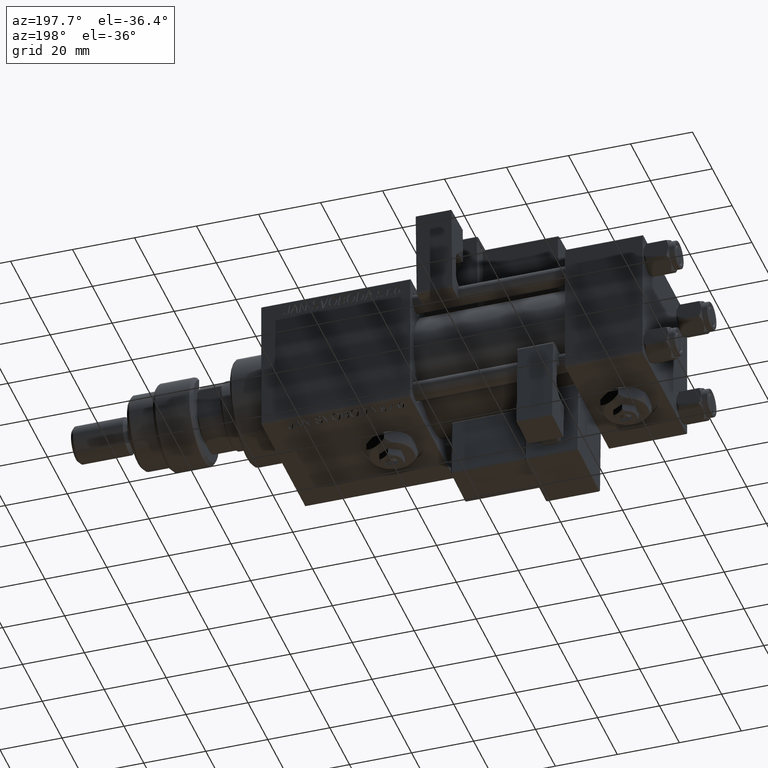
[diagram: clean part render]
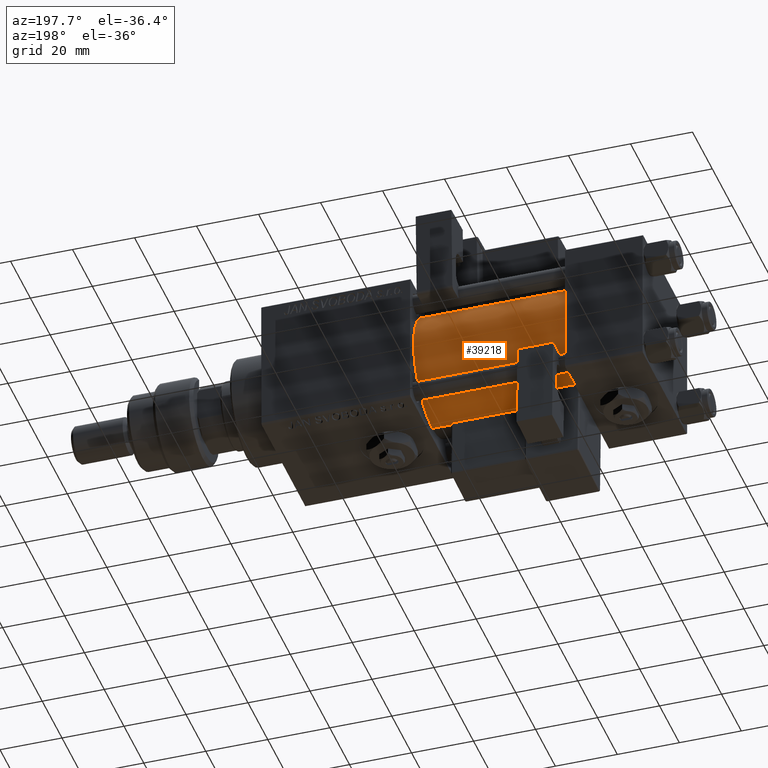
[diagram: same view with one face highlighted and labeled with its STEP entity id]
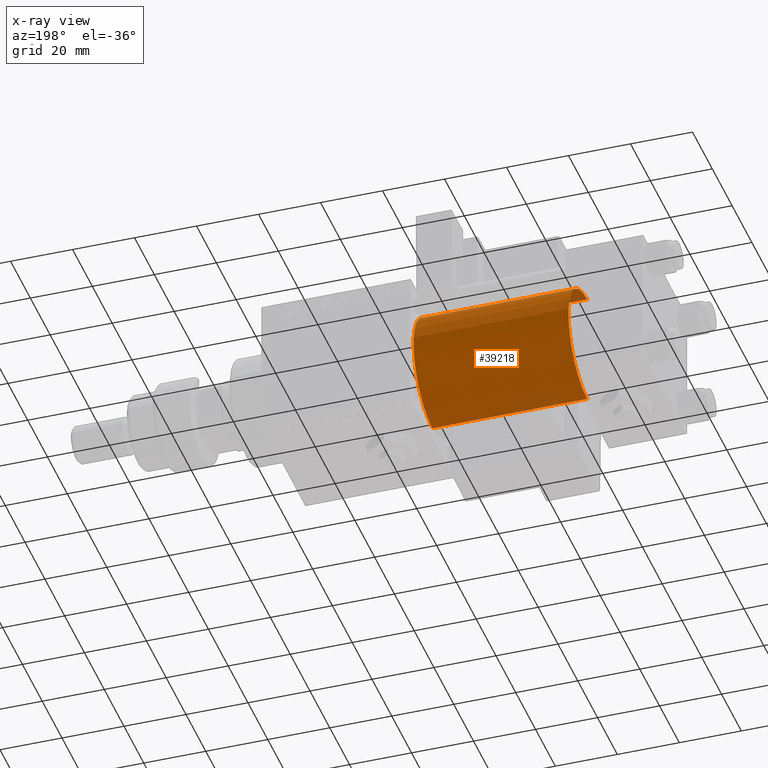
[diagram: x-ray of the same camera — body ghosted, the highlighted face saturated]
A machine part, auxiliary view. The second image highlights one B-rep face of the part: STEP entity #39218.
The next image is the same camera in x-ray: the body ghosted, the highlighted face saturated — about 4% of this face is hidden behind the body in this view.
In plain terms, the highlighted cylindrical surface (partial cylindrical patch) has radius 19 mm, axis along (-1, -0, -0).
Its self-contained STEP definition (entity closure, byte-faithful):
#949 = DIRECTION ( 'NONE',  ( -1.000000000000000000, -0.000000000000000000, -0.000000000000000000 ) ) ;
#4462 = EDGE_CURVE ( 'NONE', #30481, #36186, #43819, .T. ) ;
#6890 = DIRECTION ( 'NONE',  ( -1.000000000000000000, -0.000000000000000000, -0.000000000000000000 ) ) ;
#7451 = CARTESIAN_POINT ( 'NONE',  ( 75.00000000000001421, -2.602085213965210642E-15, 0.000000000000000000 ) ) ;
#10562 = AXIS2_PLACEMENT_3D ( 'NONE', #27157, #39290, #13903 ) ;
#11362 = CARTESIAN_POINT ( 'NONE',  ( 25.00000000000000000, -2.752562955852396712E-16, -19.00000000000000000 ) ) ;
#13903 = DIRECTION ( 'NONE',  ( 0.000000000000000000, 0.000000000000000000, 1.000000000000000000 ) ) ;
#16193 = CYLINDRICAL_SURFACE ( 'NONE', #41809, 19.00000000000000000 ) ;
#17604 = EDGE_CURVE ( 'NONE', #36186, #44843, #36717, .T. ) ;
#20693 = CARTESIAN_POINT ( 'NONE',  ( 75.00000000000001421, -2.752562955852396712E-16, -19.00000000000000000 ) ) ;
#23754 = VECTOR ( 'NONE', #34558, 1000.000000000000000 ) ;
#24645 = DIRECTION ( 'NONE',  ( 0.000000000000000000, 0.000000000000000000, 1.000000000000000000 ) ) ;
#25928 = CIRCLE ( 'NONE', #33188, 19.00000000000000000 ) ;
#27157 = CARTESIAN_POINT ( 'NONE',  ( 25.00000000000000000, -2.602085213965210642E-15, 0.000000000000000000 ) ) ;
#28054 = FACE_OUTER_BOUND ( 'NONE', #28737, .T. ) ;
#28737 = EDGE_LOOP ( 'NONE', ( #41671, #41173, #54665, #51646 ) ) ;
#29766 = CARTESIAN_POINT ( 'NONE',  ( 75.00000000000001421, -2.602085213965210642E-15, 19.00000000000000000 ) ) ;
#30040 = LINE ( 'NONE', #29766, #23754 ) ;
#30481 = VERTEX_POINT ( 'NONE', #20693 ) ;
#32129 = VERTEX_POINT ( 'NONE', #50480 ) ;
#33188 = AXIS2_PLACEMENT_3D ( 'NONE', #35226, #52386, #51545 ) ;
#34558 = DIRECTION ( 'NONE',  ( -1.000000000000000000, -0.000000000000000000, -0.000000000000000000 ) ) ;
#35226 = CARTESIAN_POINT ( 'NONE',  ( 75.00000000000001421, -2.602085213965210642E-15, 0.000000000000000000 ) ) ;
#36186 = VERTEX_POINT ( 'NONE', #11362 ) ;
#36717 = CIRCLE ( 'NONE', #10562, 19.00000000000000000 ) ;
#38237 = EDGE_CURVE ( 'NONE', #32129, #44843, #30040, .T. ) ;
#39218 = ADVANCED_FACE ( 'NONE', ( #28054 ), #16193, .T. ) ;
#39290 = DIRECTION ( 'NONE',  ( 1.000000000000000000, -0.000000000000000000, 0.000000000000000000 ) ) ;
#41173 = ORIENTED_EDGE ( 'NONE', *, *, #4462, .T. ) ;
#41671 = ORIENTED_EDGE ( 'NONE', *, *, #44905, .F. ) ;
#41809 = AXIS2_PLACEMENT_3D ( 'NONE', #7451, #6890, #24645 ) ;
#43819 = LINE ( 'NONE', #51986, #52366 ) ;
#44843 = VERTEX_POINT ( 'NONE', #51277 ) ;
#44905 = EDGE_CURVE ( 'NONE', #30481, #32129, #25928, .T. ) ;
#50480 = CARTESIAN_POINT ( 'NONE',  ( 75.00000000000001421, -2.602085213965210642E-15, 19.00000000000000000 ) ) ;
#51277 = CARTESIAN_POINT ( 'NONE',  ( 25.00000000000000000, -2.602085213965210642E-15, 19.00000000000000000 ) ) ;
#51545 = DIRECTION ( 'NONE',  ( 0.000000000000000000, 0.000000000000000000, -1.000000000000000000 ) ) ;
#51646 = ORIENTED_EDGE ( 'NONE', *, *, #38237, .F. ) ;
#51986 = CARTESIAN_POINT ( 'NONE',  ( 75.00000000000001421, -2.752562955852396712E-16, -19.00000000000000000 ) ) ;
#52366 = VECTOR ( 'NONE', #949, 1000.000000000000000 ) ;
#52386 = DIRECTION ( 'NONE',  ( 1.000000000000000000, 0.000000000000000000, 0.000000000000000000 ) ) ;
#54665 = ORIENTED_EDGE ( 'NONE', *, *, #17604, .T. ) ;